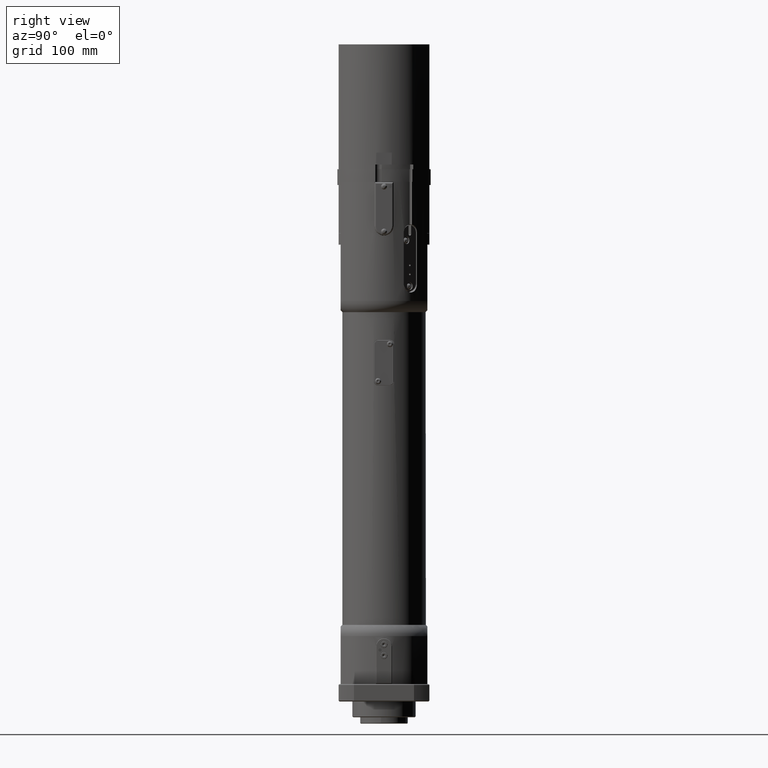
[diagram: clean part render]
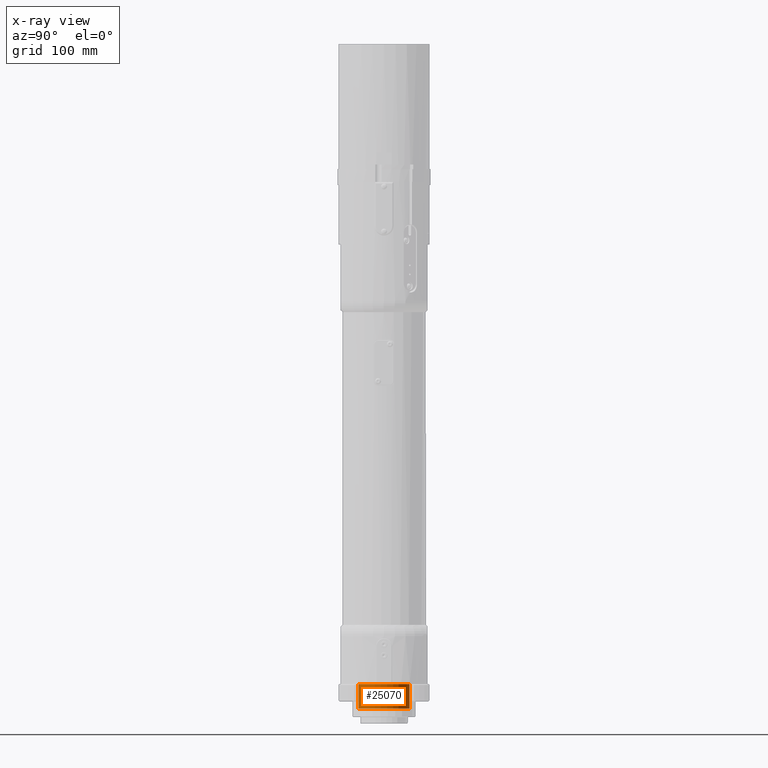
[diagram: x-ray — body ghosted, one internal face saturated and labeled with its STEP entity id]
A machine part, right view, then the same camera in x-ray: the body is ghosted and one INTERNAL B-rep face — a face not visible from any outside direction — is saturated and labeled: STEP entity #25070.
In plain terms, the highlighted cylindrical surface (bore or boss wall) has radius 32.5 mm, axis along (0, -0, 1).
Its self-contained STEP definition (entity closure, byte-faithful):
#5379=FACE_BOUND('',#8195,.T.);
#6552=FACE_OUTER_BOUND('',#8194,.T.);
#8194=EDGE_LOOP('',(#20460));
#8195=EDGE_LOOP('',(#20461));
#8838=CIRCLE('',#25745,32.5);
#9560=CIRCLE('',#27443,32.5);
#10062=VERTEX_POINT('',#36104);
#11528=VERTEX_POINT('',#41592);
#12359=EDGE_CURVE('',#10062,#10062,#8838,.T.);
#14607=EDGE_CURVE('',#11528,#11528,#9560,.T.);
#20460=ORIENTED_EDGE('',*,*,#12359,.T.);
#20461=ORIENTED_EDGE('',*,*,#14607,.F.);
#22545=CYLINDRICAL_SURFACE('',#27502,32.5);
#25070=ADVANCED_FACE('',(#6552,#5379),#22545,.F.);
#25745=AXIS2_PLACEMENT_3D('',#36105,#28662,#28663);
#27443=AXIS2_PLACEMENT_3D('',#41593,#33364,#33365);
#27502=AXIS2_PLACEMENT_3D('',#41709,#33506,#33507);
#28662=DIRECTION('center_axis',(1.3731872843117E-15,-5.91645678915759E-31,
1.));
#28663=DIRECTION('ref_axis',(1.66533453693814E-16,-1.,-7.28179297127088E-31));
#33364=DIRECTION('center_axis',(1.3731872843117E-15,-3.94430452610506E-31,
1.));
#33365=DIRECTION('ref_axis',(1.66533453693814E-16,-1.,-7.28179297127088E-31));
#33506=DIRECTION('center_axis',(1.3731872843117E-15,-3.94430452610506E-31,
1.));
#33507=DIRECTION('ref_axis',(1.66533453693814E-16,-1.,-7.28179297127088E-31));
#36104=CARTESIAN_POINT('',(2.00284708103196E-14,32.5,22.));
#36105=CARTESIAN_POINT('Origin',(2.94209101525974E-14,-1.06093160447987E-18,
22.));
#41592=CARTESIAN_POINT('',(-7.73555841601629E-15,-32.5,-9.));
#41593=CARTESIAN_POINT('Origin',(-1.31478956610653E-14,-1.06093160447198E-18,
-9.));
#41709=CARTESIAN_POINT('Origin',(1.08828818143895E-14,-1.06093160447592E-18,
8.5));